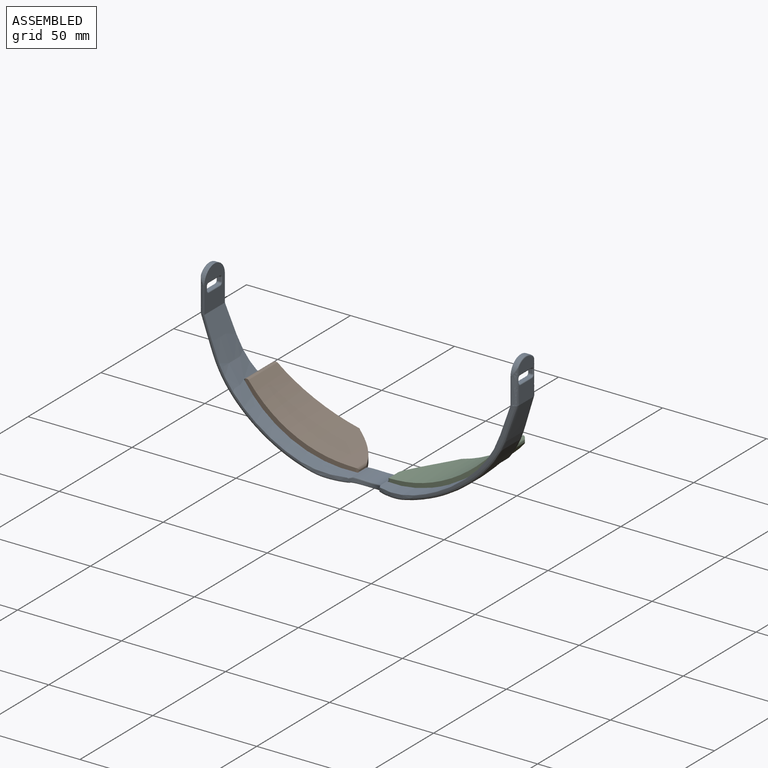
[diagram: assembled view]
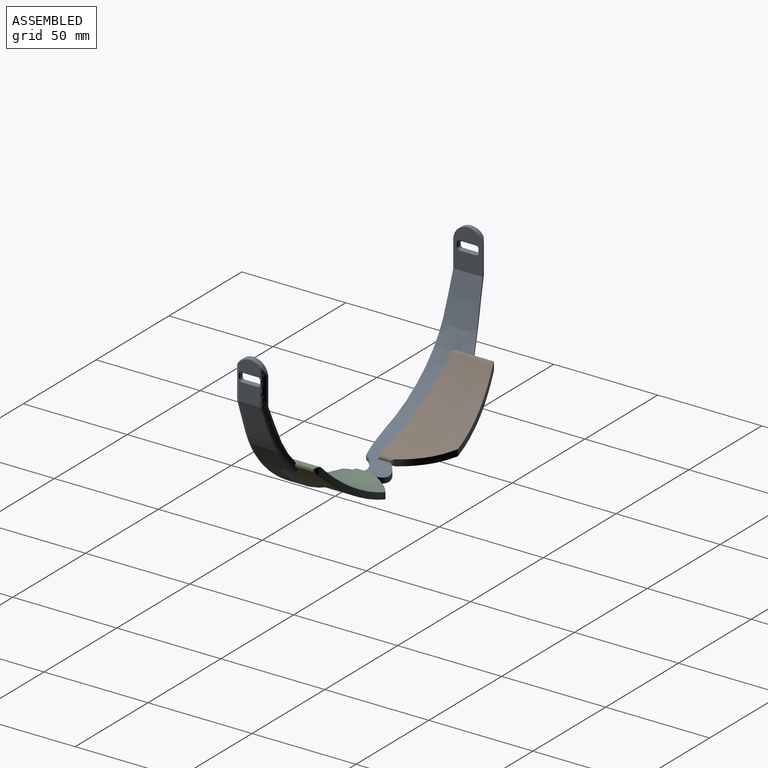
[diagram: assembled view, second angle]
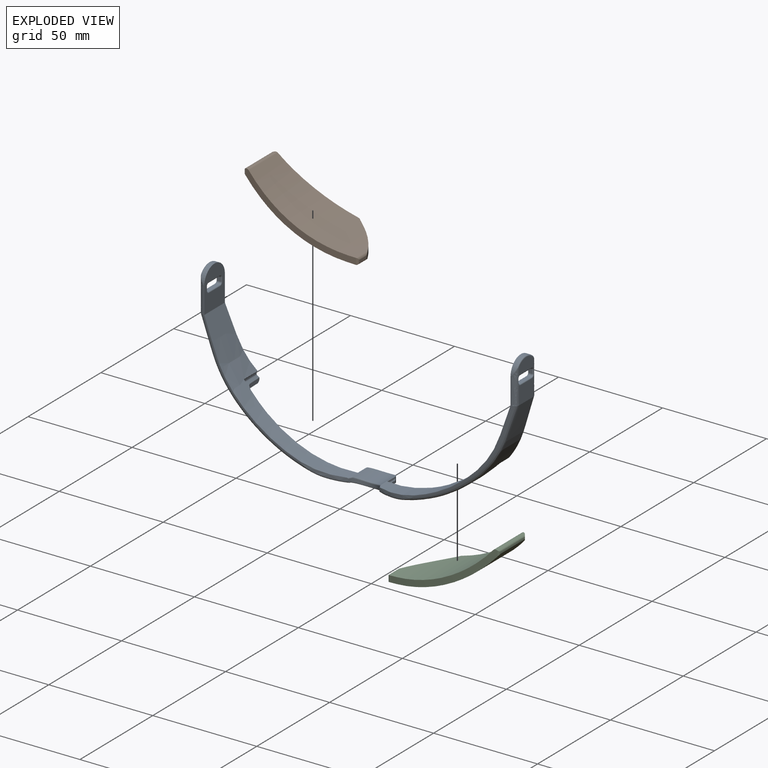
[diagram: exploded view]
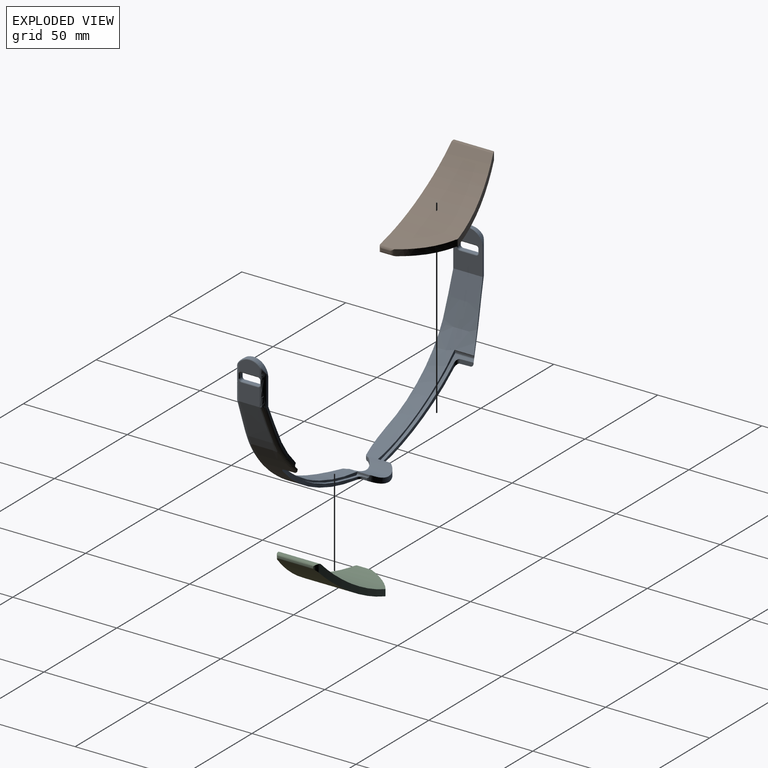
[diagram: exploded view, second angle]
ASSEMBLY  parts=3 mates=2
PART A: 133 faces, bbox 156.4x20.6x79.5 mm
  f0: plane 9.85x6.5mm, normal (1,0,0), area 53.2mm2, adj f11,f12,f80,f130,f131,f132
  f1: plane 9.85x8.83mm, normal (-1,0,0), area 82.9mm2, adj f6,f8,f15,f110,f111,f112
  f2: plane 64.85x47.66mm, normal (0,-1,0), area 43.3mm2, adj f6,f7,f16,f19,f65,f84
  f3: plane 64.85x47.66mm, normal (0,-1,0), area 43.3mm2, adj f10,f11,f17,f18,f62,f81
  f4: cylinder r=78.17mm len=44.19mm, axis (0,0,1), area 51.2mm2, adj f7,f8,f16,f20,f27,f28,f29,f82
  f5: cylinder r=78.17mm len=44.19mm, axis (0,0,1), area 51.2mm2, adj f10,f12,f17,f21,f36,f37,f38,f79
  f6: extruded ~16.81x2.12mm, area 46.1mm2, adj f1,f2,f9,f19,f84,f104,f106,f108
  f7: plane 19.72x14.15mm, normal (1,0,0), area 207.4mm2, adj f2,f4,f16,f78,f82,f84,f93,f94
  f8: extruded ~17.12x1.99mm, area 41.6mm2, adj f1,f4,f9,f20,f82,f105,f107,f109
  f9: plane 9.85x6.5mm, normal (-1,0,0), area 53.2mm2, adj f6,f8,f83,f101,f102,f103
  f10: plane 19.72x14.15mm, normal (-1,0,0), area 207.4mm2, adj f3,f5,f17,f77,f79,f81,f113,f114
  f11: extruded ~16.81x2.12mm, area 46.1mm2, adj f0,f3,f13,f18,f81,f124,f126,f128
  f12: extruded ~17.12x1.99mm, area 41.6mm2, adj f0,f5,f13,f21,f79,f125,f127,f129
  f13: plane 9.85x8.83mm, normal (1,0,0), area 82.9mm2, adj f11,f12,f14,f121,f122,f123
  f14: extruded ~68.73x57.23mm, area 916.5mm2, adj f13,f18,f21,f31,f45,f46,f47,f48
  f15: extruded ~68.73x57.23mm, area 916.5mm2, adj f1,f19,f20,f31,f40,f41,f43,f44
  f16: extruded ~66.79x54.73mm, area 999.8mm2, adj f2,f4,f7,f24,f29,f35,f50,f51
  f17: extruded ~66.79x54.73mm, area 985.4mm2, adj f3,f5,f10,f35,f36,f39,f50,f52
  f18: bspline ~61.9x61.39mm, area 249.9mm2, adj f3,f11,f14,f61
  f19: bspline ~61.9x61.39mm, area 249.9mm2, adj f2,f6,f15,f64
  f20: bspline ~41.79x20.52mm, area 92.5mm2, adj f4,f8,f15,f22,f27,f41
  f21: bspline ~40.43x19.75mm, area 92.5mm2, adj f5,f12,f14,f32,f38,f46
  f22: cylinder r=76.23mm len=49.19mm, axis (0,-1,0), area 101.7mm2, adj f20,f26,f27,f40,f41,f44,f66
  f23: plane 5.85x0.5mm, normal (-1,0,0.08), area 2.9mm2, adj f24,f25,f50,f66
  f24: cylinder r=0.75mm len=5.85mm, axis (0,-1,0), area 1.1mm2, adj f16,f23,f50,f66
  f25: cylinder r=0.75mm len=5.89mm, axis (0,-1,0), area 5mm2, adj f23,f26,f42,f43,f50,f66
  f26: cylinder r=321.87mm len=4.12mm, axis (0,-1,0), area 6.3mm2, adj f22,f25,f43,f44,f66
  f27: extruded ~9.28x0.57mm, area 5.7mm2, adj f4,f20,f22,f28,f66
  f28: plane 9.19x0.7mm, normal (1,0,-0.08), area 6.5mm2, adj f4,f27,f29,f66
  f29: extruded ~9.36x0.52mm, area 5.8mm2, adj f4,f16,f28,f66
  f30: plane 5.85x0.5mm, normal (1,0,0.08), area 2.9mm2, adj f34,f39,f50,f68
  f31: cylinder r=15.05mm len=15.04mm, axis (0,-1,0), area 161.6mm2, adj f14,f15,f42,f43,f48,f49,f50,f58
  f32: cylinder r=76.23mm len=49.19mm, axis (0,-1,0), area 101.7mm2, adj f21,f33,f38,f45,f46,f47,f68
  f33: cylinder r=321.87mm len=4.12mm, axis (0,-1,0), area 6.3mm2, adj f32,f34,f47,f48,f68
  f34: cylinder r=0.75mm len=5.89mm, axis (0,-1,0), area 5mm2, adj f30,f33,f48,f49,f50,f68
  f35: cylinder r=12.55mm len=14.2mm, axis (0,-1,0), area 151.6mm2, adj f16,f17,f50,f54,f55,f56
  f36: extruded ~9.36x0.52mm, area 5.8mm2, adj f5,f17,f37,f68
  f37: plane 9.19x0.7mm, normal (-1,0,-0.08), area 6.5mm2, adj f5,f36,f38,f68
  f38: extruded ~9.28x0.57mm, area 5.7mm2, adj f5,f21,f32,f37,f68
  f39: cylinder r=0.75mm len=5.85mm, axis (0,-1,0), area 1.1mm2, adj f17,f30,f50,f68
  f40: cylinder r=1.88mm len=3.85mm, axis (0,0,1), area 5.5mm2, adj f15,f22,f41,f44
  f41: plane 6.52x2.14mm, normal (1,0.02,0), area 12.6mm2, adj f15,f20,f22,f40
  f42: plane 1.99x1.25mm, normal (-1,0,0), area 2.5mm2, adj f25,f31,f43,f50
  f43: cylinder r=1.82mm len=1.8mm, axis (0,0,1), area 3mm2, adj f15,f25,f26,f31,f42,f44
  f44: cylinder r=201.95mm len=49.58mm, axis (0,0,1), area 85.2mm2, adj f15,f22,f26,f40,f43
  f45: cylinder r=1.88mm len=3.85mm, axis (0,0,1), area 5.5mm2, adj f14,f32,f46,f47
  f46: plane 6.52x2.14mm, normal (-1,0.02,0), area 12.6mm2, adj f14,f21,f32,f45
  f47: cylinder r=201.95mm len=49.58mm, axis (0,0,1), area 85.2mm2, adj f14,f32,f33,f45,f48
  f48: cylinder r=1.82mm len=1.8mm, axis (0,0,1), area 3mm2, adj f14,f31,f33,f34,f47,f49
  f49: plane 1.99x1.25mm, normal (1,0,0), area 2.5mm2, adj f31,f34,f48,f50
  f50: cylinder r=8mm len=14.97mm, axis (0,0,1), area 49.2mm2, adj f16,f17,f23,f24,f25,f30,f31,f34
  f51: cylinder r=59.44mm len=19.7mm, axis (0,0,1), area 25.6mm2, adj f16,f53,f56,f63,f64,f65
  f52: cylinder r=59.44mm len=19.7mm, axis (0,0,1), area 25.6mm2, adj f17,f53,f54,f60,f61,f62
  f53: cylinder r=8mm len=14.97mm, axis (0,0,1), area 30.6mm2, adj f51,f52,f54,f55,f56,f57,f58,f59
  f54: bspline ~3.88x2.35mm, area 1.8mm2, adj f17,f35,f52,f53,f55
  f55: bspline ~14.55x4.97mm, area 11.3mm2, adj f35,f53,f54,f56
  f56: bspline ~3.88x2.35mm, area 1.8mm2, adj f16,f35,f51,f53,f55
  f57: bspline ~1.59x0.95mm, area 0.6mm2, adj f15,f53,f58,f63
  f58: bspline ~16.16x5.77mm, area 15.3mm2, adj f31,f53,f57,f59
  f59: bspline ~1.64x0.96mm, area 0.6mm2, adj f14,f53,f58,f60
  f60: bspline ~18.1x5.52mm, area 19.1mm2, adj f14,f52,f53,f59,f61
  f61: bspline ~9.9x4.67mm, area 8.2mm2, adj f18,f52,f60,f62
  f62: cylinder r=1mm len=0.53mm, axis (0,0,1), area 0mm2, adj f3,f17,f52,f61
  f63: bspline ~18.1x5.52mm, area 19.1mm2, adj f15,f51,f53,f57,f64
  f64: bspline ~9.9x4.65mm, area 8.2mm2, adj f19,f51,f63,f65
  f65: cylinder r=1mm len=0.53mm, axis (0,0,1), area 0mm2, adj f2,f16,f51,f64
  f66: cylinder r=214.85mm len=57.89mm, axis (0.08,0,1), area 62.7mm2, adj f16,f22,f23,f24,f25,f26,f27,f28
  f67: extruded ~22.71x18.66mm, area 19.9mm2, adj f17,f68
  f68: cylinder r=214.85mm len=57.89mm, axis (-0.08,0,1), area 62.7mm2, adj f17,f30,f32,f33,f34,f36,f37,f38
  f69: plane 1.75x1.58mm, normal (0,1,0), area 2.8mm2, adj f85,f87,f117,f126
  f70: plane 7.79x1.65mm, normal (0,0,-1), area 12.8mm2, adj f87,f88,f113,f132
  f71: plane 1.75x1.56mm, normal (0,-1,0), area 2.7mm2, adj f86,f88,f116,f127
  f72: plane 7.79x1.65mm, normal (0,0,1), area 12.8mm2, adj f85,f86,f120,f121
  f73: plane 1.75x1.58mm, normal (0,1,0), area 2.8mm2, adj f89,f92,f96,f106
  f74: plane 7.79x1.65mm, normal (0,0,1), area 12.8mm2, adj f91,f92,f100,f112
  f75: plane 1.75x1.56mm, normal (0,-1,0), area 2.7mm2, adj f90,f91,f97,f107
  f76: plane 7.79x1.65mm, normal (0,0,-1), area 12.8mm2, adj f89,f90,f93,f101
  f77: cylinder r=7.06mm len=14.09mm, axis (1,0,0), area 35.9mm2, adj f10,f79,f80,f81
  f78: cylinder r=7.06mm len=14.09mm, axis (1,0,0), area 35.9mm2, adj f7,f82,f83,f84
  f79: bspline ~5.08x2.75mm, area 2mm2, adj f5,f10,f12,f77,f80
  f80: torus R=6.56mm, axis (-1,0,0), area 9.2mm2, adj f0,f77,f79,f81
  f81: bspline ~4.45x3.31mm, area 2mm2, adj f3,f10,f11,f77,f80
  f82: bspline ~5.09x2.75mm, area 2mm2, adj f4,f7,f8,f78,f83
  f83: torus R=6.56mm, axis (1,0,0), area 9.2mm2, adj f9,f78,f82,f84
  f84: bspline ~4.44x2.87mm, area 2mm2, adj f2,f6,f7,f78,f83
  f85: cylinder r=1mm len=1.65mm, axis (-1,0,0), area 2.6mm2, adj f69,f72,f119,f122,f124
  f86: cylinder r=1mm len=1.65mm, axis (1,0,0), area 2.5mm2, adj f71,f72,f118,f123,f125
  f87: cylinder r=1mm len=1.65mm, axis (1,0,0), area 2.6mm2, adj f69,f70,f115,f128,f130
  f88: cylinder r=1mm len=1.65mm, axis (-1,0,0), area 2.5mm2, adj f70,f71,f114,f129,f131
  f89: cylinder r=1mm len=1.65mm, axis (1,0,0), area 2.6mm2, adj f73,f76,f94,f102,f104
  f90: cylinder r=1mm len=1.65mm, axis (-1,0,0), area 2.5mm2, adj f75,f76,f95,f103,f105
  f91: cylinder r=1mm len=1.65mm, axis (1,0,0), area 2.5mm2, adj f74,f75,f99,f109,f111
  f92: cylinder r=1mm len=1.65mm, axis (-1,0,0), area 2.6mm2, adj f73,f74,f98,f108,f110
  f93: cylinder r=0.5mm len=7.79mm, axis (0,1,0), area 6.1mm2, adj f7,f76,f94,f95
  f94: torus R=1.5mm, axis (1,0,0), area 1.5mm2, adj f7,f89,f93,f96
  f95: torus R=1.5mm, axis (1,0,0), area 1.5mm2, adj f7,f90,f93,f97
  f96: cylinder r=0.5mm len=1.75mm, axis (0,0,1), area 1.4mm2, adj f7,f73,f94,f98
  f97: cylinder r=0.5mm len=1.75mm, axis (0,0,-1), area 1.4mm2, adj f7,f75,f95,f99
  f98: torus R=1.5mm, axis (1,0,0), area 1.5mm2, adj f7,f92,f96,f100
  f99: torus R=1.5mm, axis (1,0,0), area 1.5mm2, adj f7,f91,f97,f100
  f100: cylinder r=0.5mm len=7.79mm, axis (0,-1,0), area 6.1mm2, adj f7,f74,f98,f99
  f101: cylinder r=0.5mm len=7.79mm, axis (0,-1,0), area 6.1mm2, adj f9,f76,f102,f103
  f102: torus R=1.5mm, axis (1,0,0), area 0.7mm2, adj f9,f89,f101,f104
  f103: torus R=1.5mm, axis (1,0,0), area 0.7mm2, adj f9,f90,f101,f105
  f104: bspline ~1.27x1mm, area 0.8mm2, adj f6,f89,f102,f106
  f105: bspline ~1.4x1.05mm, area 0.9mm2, adj f8,f90,f103,f107
  f106: cylinder r=0.5mm len=1.75mm, axis (0,0,-1), area 1.7mm2, adj f6,f73,f104,f108
  f107: cylinder r=0.5mm len=1.75mm, axis (0,0,-1), area 1.7mm2, adj f8,f75,f105,f109
  f108: bspline ~1.27x1mm, area 0.8mm2, adj f6,f92,f106,f110
  f109: bspline ~1.4x1.05mm, area 0.9mm2, adj f8,f91,f107,f111
  f110: torus R=1.5mm, axis (1,0,0), area 0.7mm2, adj f1,f92,f108,f112
  f111: torus R=1.5mm, axis (1,0,0), area 0.7mm2, adj f1,f91,f109,f112
  f112: cylinder r=0.5mm len=7.79mm, axis (0,1,0), area 6.1mm2, adj f1,f74,f110,f111
  f113: cylinder r=0.5mm len=7.79mm, axis (0,-1,0), area 6.1mm2, adj f10,f70,f114,f115
  f114: torus R=1.5mm, axis (-1,0,0), area 1.5mm2, adj f10,f88,f113,f116
  f115: torus R=1.5mm, axis (-1,0,0), area 1.5mm2, adj f10,f87,f113,f117
  f116: cylinder r=0.5mm len=1.75mm, axis (0,0,1), area 1.4mm2, adj f10,f71,f114,f118
  f117: cylinder r=0.5mm len=1.75mm, axis (0,0,-1), area 1.4mm2, adj f10,f69,f115,f119
  f118: torus R=1.5mm, axis (-1,0,0), area 1.5mm2, adj f10,f86,f116,f120
  f119: torus R=1.5mm, axis (-1,0,0), area 1.5mm2, adj f10,f85,f117,f120
  f120: cylinder r=0.5mm len=7.79mm, axis (0,1,0), area 6.1mm2, adj f10,f72,f118,f119
  f121: cylinder r=0.5mm len=7.79mm, axis (0,1,0), area 6.1mm2, adj f13,f72,f122,f123
  f122: torus R=1.5mm, axis (-1,0,0), area 0.7mm2, adj f13,f85,f121,f124
  f123: torus R=1.5mm, axis (-1,0,0), area 0.7mm2, adj f13,f86,f121,f125
  f124: bspline ~1.32x1.04mm, area 0.8mm2, adj f11,f85,f122,f126
  f125: bspline ~1.45x1.1mm, area 0.9mm2, adj f12,f86,f123,f127
  f126: cylinder r=0.5mm len=1.75mm, axis (0,0,-1), area 1.7mm2, adj f11,f69,f124,f128
  f127: cylinder r=0.5mm len=1.75mm, axis (0,0,-1), area 1.7mm2, adj f12,f71,f125,f129
  f128: bspline ~1.32x1.04mm, area 0.8mm2, adj f11,f87,f126,f130
  f129: bspline ~1.49x1.04mm, area 0.9mm2, adj f12,f88,f127,f131
  f130: torus R=1.5mm, axis (-1,0,0), area 0.7mm2, adj f0,f87,f128,f132
  f131: torus R=1.5mm, axis (-1,0,0), area 0.7mm2, adj f0,f88,f129,f132
  f132: cylinder r=0.5mm len=7.79mm, axis (0,-1,0), area 6.1mm2, adj f0,f70,f130,f131
PART B: 20 faces, bbox 54.4x28.5x28.1 mm
  f0: cylinder r=3.3mm len=2.62mm, axis (0,-1,0), area 2.9mm2, adj f1,f8,f12,f15,f16
  f1: cylinder r=49.3mm len=18.48mm, axis (0,-1,0), area 75.8mm2, adj f0,f2,f9,f11,f12,f13,f14,f16
  f2: cylinder r=1.3mm len=3.47mm, axis (0,-1,0), area 4.3mm2, adj f1,f3,f9,f11
  f3: cylinder r=166.82mm len=34.86mm, axis (0,-1,0), area 128.7mm2, adj f2,f4,f9,f10,f11
  f4: cylinder r=3.63mm len=3.72mm, axis (0,-1,0), area 5.5mm2, adj f3,f10,f11,f17,f18,f19
  f5: cylinder r=1.62mm len=2.5mm, axis (0,-1,0), area 1.9mm2, adj f6,f10,f11,f17,f18,f19
  f6: cylinder r=214.15mm len=52.58mm, axis (0,-1,0), area 180.2mm2, adj f5,f7,f9,f10,f11,f13,f14
  f7: cylinder r=1.23mm len=3.04mm, axis (0,-1,0), area 4.3mm2, adj f6,f8,f12,f13,f14,f15,f16
  f8: plane 4.23x1.26mm, normal (1,0,0), area 5.3mm2, adj f0,f7,f15,f16
  f9: cylinder r=73.13mm len=47.19mm, axis (0,0,1), area 1304.8mm2, adj f1,f2,f3,f6,f10,f13
  f10: cylinder r=1.65mm len=19.96mm, axis (0,0,1), area 44.1mm2, adj f3,f4,f5,f6,f9,f17
  f11: cylinder r=76.13mm len=49.13mm, axis (0,0,1), area 1346.3mm2, adj f1,f2,f3,f4,f5,f6,f14,f19
  f12: cylinder r=0.75mm len=7.77mm, axis (0,0,1), area 6.9mm2, adj f0,f1,f7,f14,f15
  f13: cylinder r=318.77mm len=14.26mm, axis (0,0,1), area 44.7mm2, adj f1,f6,f7,f9,f16
  f14: cylinder r=321.77mm len=14.74mm, axis (0,0,1), area 47.4mm2, adj f1,f6,f7,f11,f12
  f15: plane 4.86x0.32mm, normal (1,-0.08,0), area 1mm2, adj f0,f7,f8,f12
  f16: cylinder r=1.83mm len=7.08mm, axis (0,0,1), area 6.3mm2, adj f0,f1,f7,f8,f13
  f17: extruded ~18.16x0.52mm, area 11mm2, adj f4,f5,f10,f18
  f18: plane 17.17x0.78mm, normal (-1,0.08,0), area 11.9mm2, adj f4,f5,f17,f19
  f19: extruded ~17.66x0.57mm, area 10.6mm2, adj f4,f5,f11,f18
PART C: 20 faces, bbox 54.4x28.5x28.1 mm
  f0: cylinder r=3.3mm len=2.62mm, axis (0,-1,0), area 2.9mm2, adj f1,f8,f12,f15,f16
  f1: cylinder r=49.3mm len=18.48mm, axis (0,-1,0), area 75.8mm2, adj f0,f2,f9,f11,f12,f13,f14,f16
  f2: cylinder r=1.3mm len=3.47mm, axis (0,-1,0), area 4.3mm2, adj f1,f3,f9,f11
  f3: cylinder r=166.82mm len=34.86mm, axis (0,-1,0), area 128.7mm2, adj f2,f4,f9,f10,f11
  f4: cylinder r=3.63mm len=3.72mm, axis (0,-1,0), area 5.5mm2, adj f3,f10,f11,f17,f18,f19
  f5: cylinder r=1.62mm len=2.5mm, axis (0,-1,0), area 1.9mm2, adj f6,f10,f11,f17,f18,f19
  f6: cylinder r=214.15mm len=52.58mm, axis (0,-1,0), area 180.2mm2, adj f5,f7,f9,f10,f11,f13,f14
  f7: cylinder r=1.23mm len=3.04mm, axis (0,-1,0), area 4.3mm2, adj f6,f8,f12,f13,f14,f15,f16
  f8: plane 4.23x1.26mm, normal (-1,0,0), area 5.3mm2, adj f0,f7,f15,f16
  f9: cylinder r=73.13mm len=47.19mm, axis (0,0,1), area 1304.8mm2, adj f1,f2,f3,f6,f10,f13
  f10: cylinder r=1.65mm len=19.96mm, axis (0,0,1), area 44.1mm2, adj f3,f4,f5,f6,f9,f17
  f11: cylinder r=76.13mm len=49.13mm, axis (0,0,1), area 1346.3mm2, adj f1,f2,f3,f4,f5,f6,f14,f19
  f12: cylinder r=0.75mm len=7.77mm, axis (0,0,1), area 6.9mm2, adj f0,f1,f7,f14,f15
  f13: cylinder r=318.77mm len=14.26mm, axis (0,0,1), area 44.7mm2, adj f1,f6,f7,f9,f16
  f14: cylinder r=321.77mm len=14.74mm, axis (0,0,1), area 47.4mm2, adj f1,f6,f7,f11,f12
  f15: plane 4.86x0.32mm, normal (-1,-0.08,0), area 1mm2, adj f0,f7,f8,f12
  f16: cylinder r=1.83mm len=7.08mm, axis (0,0,1), area 6.3mm2, adj f0,f1,f7,f8,f13
  f17: extruded ~18.16x0.52mm, area 11mm2, adj f4,f5,f10,f18
  f18: plane 17.17x0.78mm, normal (1,0.08,0), area 11.9mm2, adj f4,f5,f17,f19
  f19: extruded ~17.66x0.57mm, area 10.6mm2, adj f4,f5,f11,f18
PLACE A t=(0.16,-9.68,72.97)mm
PLACE B rot(axis=(1,0,0),90deg) t=(21.79,3.44,-34.62)mm
PLACE C rot(axis=(1,0,0),90deg) t=(10.92,3.14,-34.61)mm
MATE planar C.f18 <-> A.f37  axis (1,0,0.08) through (61.56,17.53,-7.8)mm
MATE planar B.f18 <-> A.f28  axis (-1,0,0.08) through (-61.28,9.3,-8.16)mm
